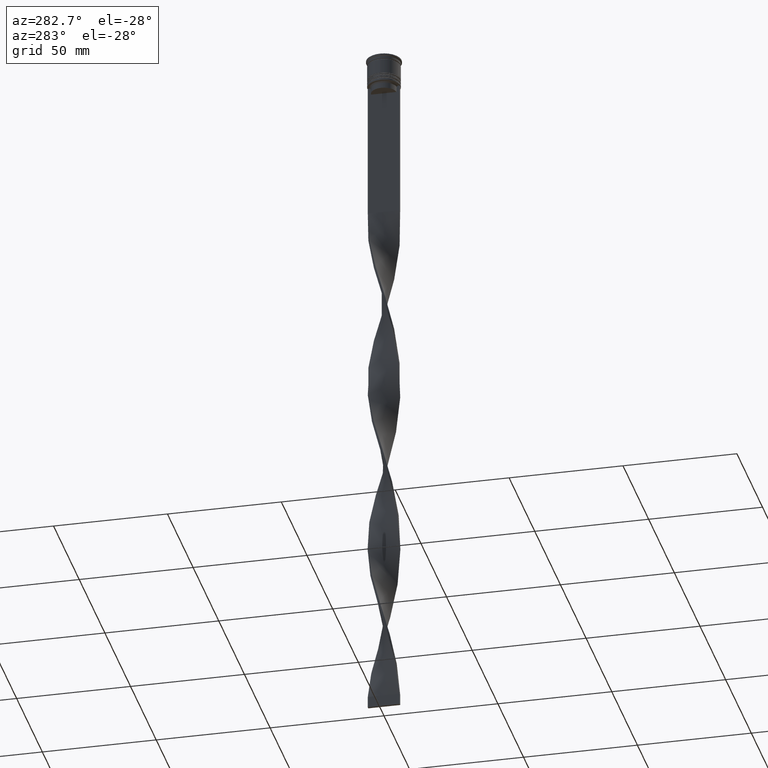
[diagram: clean part render]
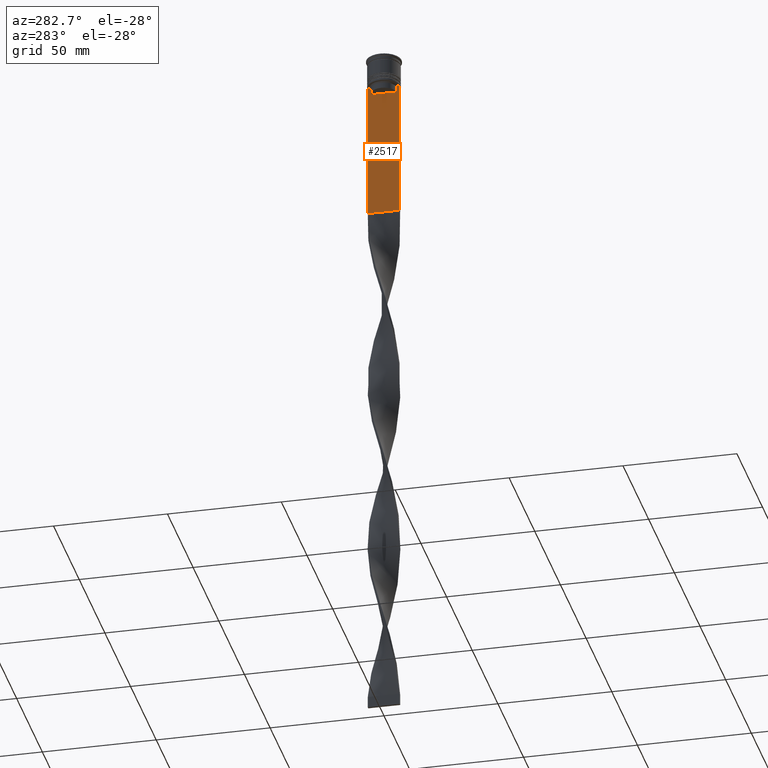
[diagram: same view with one face highlighted and labeled with its STEP entity id]
A machine part, auxiliary view. The second image highlights one B-rep face of the part: STEP entity #2517.
In plain terms, the highlighted planar face has unit normal (-1, 0, 0).
Its self-contained STEP definition (entity closure, byte-faithful):
#32 = VECTOR ( 'NONE', #2176, 1000.000000000000000 ) ;
#40 = AXIS2_PLACEMENT_3D ( 'NONE', #2763, #1314, #1358 ) ;
#181 = ORIENTED_EDGE ( 'NONE', *, *, #814, .T. ) ;
#207 = CARTESIAN_POINT ( 'NONE',  ( -0.5000000000000000000, -5.627832620112292794, -15.50000000000000000 ) ) ;
#260 = VERTEX_POINT ( 'NONE', #296 ) ;
#268 = LINE ( 'NONE', #3952, #32 ) ;
#288 = CARTESIAN_POINT ( 'NONE',  ( -0.5000000000000000000, -5.627832620112292794, -13.00000000000000000 ) ) ;
#290 = VERTEX_POINT ( 'NONE', #380 ) ;
#296 = CARTESIAN_POINT ( 'NONE',  ( -0.5000000000000000000, -5.627832620112292794, -13.00000000000000000 ) ) ;
#380 = CARTESIAN_POINT ( 'NONE',  ( -0.5000000000000000000, 7.000000000000002665, -73.00000000000001421 ) ) ;
#407 = DIRECTION ( 'NONE',  ( 0.000000000000000000, 0.000000000000000000, -1.000000000000000000 ) ) ;
#538 = CARTESIAN_POINT ( 'NONE',  ( -0.5000000000000000000, -6.129641098791995368, -12.50000000000000000 ) ) ;
#563 = CARTESIAN_POINT ( 'NONE',  ( -0.5000000000000000000, -6.999999999999997335, -73.00000000000001421 ) ) ;
#575 = ORIENTED_EDGE ( 'NONE', *, *, #1401, .F. ) ;
#576 = FACE_OUTER_BOUND ( 'NONE', #3853, .T. ) ;
#643 = DIRECTION ( 'NONE',  ( 0.000000000000000000, -1.000000000000000000, 0.000000000000000000 ) ) ;
#692 = VERTEX_POINT ( 'NONE', #563 ) ;
#697 = EDGE_CURVE ( 'NONE', #1816, #692, #268, .T. ) ;
#780 = CARTESIAN_POINT ( 'NONE',  ( -0.5000000000000000000, 5.962396146966409738, -12.66669130573587054 ) ) ;
#786 = VERTEX_POINT ( 'NONE', #1415 ) ;
#814 = EDGE_CURVE ( 'NONE', #786, #290, #1014, .T. ) ;
#867 = CARTESIAN_POINT ( 'NONE',  ( -0.5000000000000000000, -5.962396079681185235, -12.66669137279835589 ) ) ;
#894 = DIRECTION ( 'NONE',  ( 0.000000000000000000, -1.000000000000000000, 0.000000000000000000 ) ) ;
#910 = CARTESIAN_POINT ( 'NONE',  ( -0.5000000000000000000, -5.627832620112292794, 0.000000000000000000 ) ) ;
#959 = LINE ( 'NONE', #910, #2043 ) ;
#967 = LINE ( 'NONE', #2108, #2964 ) ;
#997 = VECTOR ( 'NONE', #407, 1000.000000000000000 ) ;
#1014 = LINE ( 'NONE', #2837, #997 ) ;
#1015 = CARTESIAN_POINT ( 'NONE',  ( -0.5000000000000000000, 5.627832620112292794, -13.00000000000000000 ) ) ;
#1110 = VERTEX_POINT ( 'NONE', #1862 ) ;
#1111 = ORIENTED_EDGE ( 'NONE', *, *, #2707, .F. ) ;
#1128 = VECTOR ( 'NONE', #894, 1000.000000000000000 ) ;
#1314 = DIRECTION ( 'NONE',  ( -1.000000000000000000, 0.000000000000000000, 0.000000000000000000 ) ) ;
#1358 = DIRECTION ( 'NONE',  ( 0.000000000000000000, 0.000000000000000000, 1.000000000000000000 ) ) ;
#1401 = EDGE_CURVE ( 'NONE', #3264, #3127, #2077, .T. ) ;
#1414 = B_SPLINE_CURVE_WITH_KNOTS ( 'NONE', 3,
 ( #3591, #780, #3014, #2976 ),
 .UNSPECIFIED., .F., .F.,
 ( 4, 4 ),
 ( 0.01045365750109871796, 0.01116204421161398619 ),
 .UNSPECIFIED. ) ;
#1415 = CARTESIAN_POINT ( 'NONE',  ( -0.5000000000000000000, 7.000000000000002665, -12.50000000000000000 ) ) ;
#1467 = VECTOR ( 'NONE', #3247, 1000.000000000000000 ) ;
#1583 = LINE ( 'NONE', #2834, #4004 ) ;
#1703 = B_SPLINE_CURVE_WITH_KNOTS ( 'NONE', 3,
 ( #288, #2158, #867, #3955 ),
 .UNSPECIFIED., .F., .F.,
 ( 4, 4 ),
 ( 0.02651134470867368836, 0.02721991123504332449 ),
 .UNSPECIFIED. ) ;
#1734 = DIRECTION ( 'NONE',  ( 0.000000000000000000, 0.000000000000000000, -1.000000000000000000 ) ) ;
#1816 = VERTEX_POINT ( 'NONE', #1854 ) ;
#1817 = PLANE ( 'NONE',  #40 ) ;
#1837 = ORIENTED_EDGE ( 'NONE', *, *, #3907, .F. ) ;
#1854 = CARTESIAN_POINT ( 'NONE',  ( -0.5000000000000000000, -6.999999999999997335, -12.50000000000000000 ) ) ;
#1862 = CARTESIAN_POINT ( 'NONE',  ( -0.5000000000000000000, 6.129641098791995368, -12.50000000000000000 ) ) ;
#1916 = ORIENTED_EDGE ( 'NONE', *, *, #2814, .F. ) ;
#2043 = VECTOR ( 'NONE', #3550, 1000.000000000000000 ) ;
#2077 = LINE ( 'NONE', #2144, #1128 ) ;
#2108 = CARTESIAN_POINT ( 'NONE',  ( -0.5000000000000000000, -6.999999999999997335, -12.50000000000000000 ) ) ;
#2144 = CARTESIAN_POINT ( 'NONE',  ( -0.5000000000000000000, 5.649999999999998579, -15.50000000000000000 ) ) ;
#2158 = CARTESIAN_POINT ( 'NONE',  ( -0.5000000000000000000, -5.795128760752289665, -12.83336023406855197 ) ) ;
#2176 = DIRECTION ( 'NONE',  ( 0.000000000000000000, 0.000000000000000000, -1.000000000000000000 ) ) ;
#2307 = CARTESIAN_POINT ( 'NONE',  ( -0.5000000000000000000, -6.999999999999997335, -73.00000000000001421 ) ) ;
#2516 = DIRECTION ( 'NONE',  ( 0.000000000000000000, -1.000000000000000000, 0.000000000000000000 ) ) ;
#2517 = ADVANCED_FACE ( 'NONE', ( #576 ), #1817, .T. ) ;
#2571 = EDGE_CURVE ( 'NONE', #692, #290, #2614, .T. ) ;
#2614 = LINE ( 'NONE', #2307, #1467 ) ;
#2707 = EDGE_CURVE ( 'NONE', #1110, #3806, #1414, .T. ) ;
#2737 = EDGE_CURVE ( 'NONE', #786, #1110, #967, .T. ) ;
#2763 = CARTESIAN_POINT ( 'NONE',  ( -0.5000000000000000000, -6.999999999999997335, 1.535668847618198329 ) ) ;
#2814 = EDGE_CURVE ( 'NONE', #3127, #260, #959, .T. ) ;
#2828 = VERTEX_POINT ( 'NONE', #538 ) ;
#2834 = CARTESIAN_POINT ( 'NONE',  ( -0.5000000000000000000, 5.627832620112292794, 0.000000000000000000 ) ) ;
#2837 = CARTESIAN_POINT ( 'NONE',  ( -0.5000000000000000000, 7.000000000000002665, 1.535668847618198329 ) ) ;
#2964 = VECTOR ( 'NONE', #2516, 1000.000000000000000 ) ;
#2976 = CARTESIAN_POINT ( 'NONE',  ( -0.5000000000000000000, 5.627832620112292794, -13.00000000000000000 ) ) ;
#3014 = CARTESIAN_POINT ( 'NONE',  ( -0.5000000000000000000, 5.795128834036803234, -12.83336016107156574 ) ) ;
#3081 = CARTESIAN_POINT ( 'NONE',  ( -0.5000000000000000000, 5.627832620112292794, -15.50000000000000000 ) ) ;
#3127 = VERTEX_POINT ( 'NONE', #207 ) ;
#3234 = EDGE_CURVE ( 'NONE', #260, #2828, #1703, .T. ) ;
#3247 = DIRECTION ( 'NONE',  ( 0.000000000000000000, 1.000000000000000000, 0.000000000000000000 ) ) ;
#3264 = VERTEX_POINT ( 'NONE', #3081 ) ;
#3364 = ORIENTED_EDGE ( 'NONE', *, *, #2737, .F. ) ;
#3441 = ORIENTED_EDGE ( 'NONE', *, *, #697, .F. ) ;
#3446 = CARTESIAN_POINT ( 'NONE',  ( -0.5000000000000000000, -6.999999999999997335, -12.50000000000000000 ) ) ;
#3514 = ORIENTED_EDGE ( 'NONE', *, *, #2571, .F. ) ;
#3550 = DIRECTION ( 'NONE',  ( -0.000000000000000000, -0.000000000000000000, 1.000000000000000000 ) ) ;
#3560 = ORIENTED_EDGE ( 'NONE', *, *, #3893, .F. ) ;
#3591 = CARTESIAN_POINT ( 'NONE',  ( -0.5000000000000000000, 6.129641098791995368, -12.50000000000000000 ) ) ;
#3681 = ORIENTED_EDGE ( 'NONE', *, *, #3234, .F. ) ;
#3763 = LINE ( 'NONE', #3446, #3884 ) ;
#3806 = VERTEX_POINT ( 'NONE', #1015 ) ;
#3853 = EDGE_LOOP ( 'NONE', ( #1111, #3364, #181, #3514, #3441, #3560, #3681, #1916, #575, #1837 ) ) ;
#3884 = VECTOR ( 'NONE', #643, 1000.000000000000000 ) ;
#3893 = EDGE_CURVE ( 'NONE', #2828, #1816, #3763, .T. ) ;
#3907 = EDGE_CURVE ( 'NONE', #3806, #3264, #1583, .T. ) ;
#3952 = CARTESIAN_POINT ( 'NONE',  ( -0.5000000000000000000, -6.999999999999997335, 1.535668847618198329 ) ) ;
#3955 = CARTESIAN_POINT ( 'NONE',  ( -0.5000000000000000000, -6.129641098791995368, -12.50000000000000000 ) ) ;
#4004 = VECTOR ( 'NONE', #1734, 1000.000000000000000 ) ;